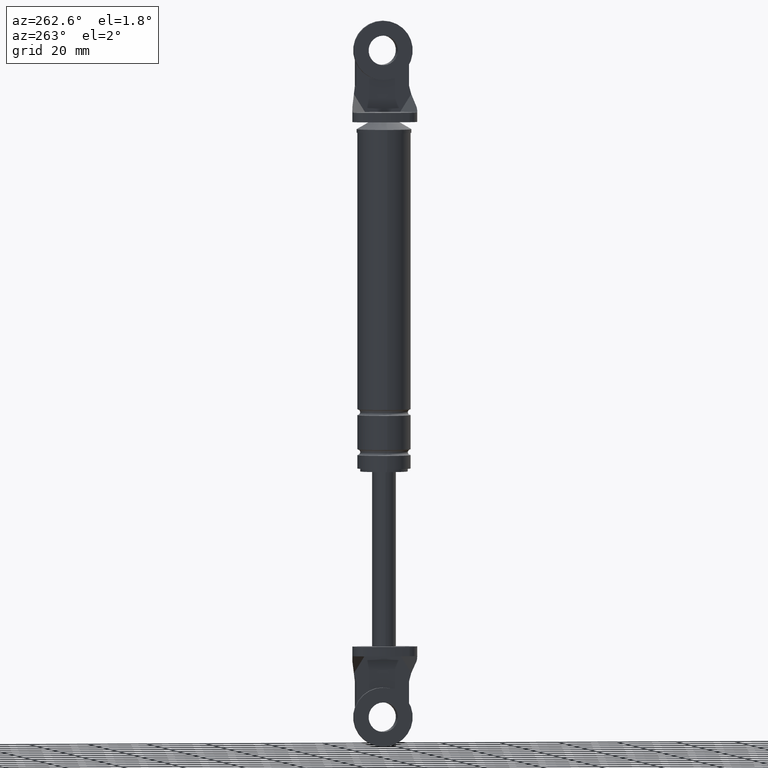
[diagram: clean part render]
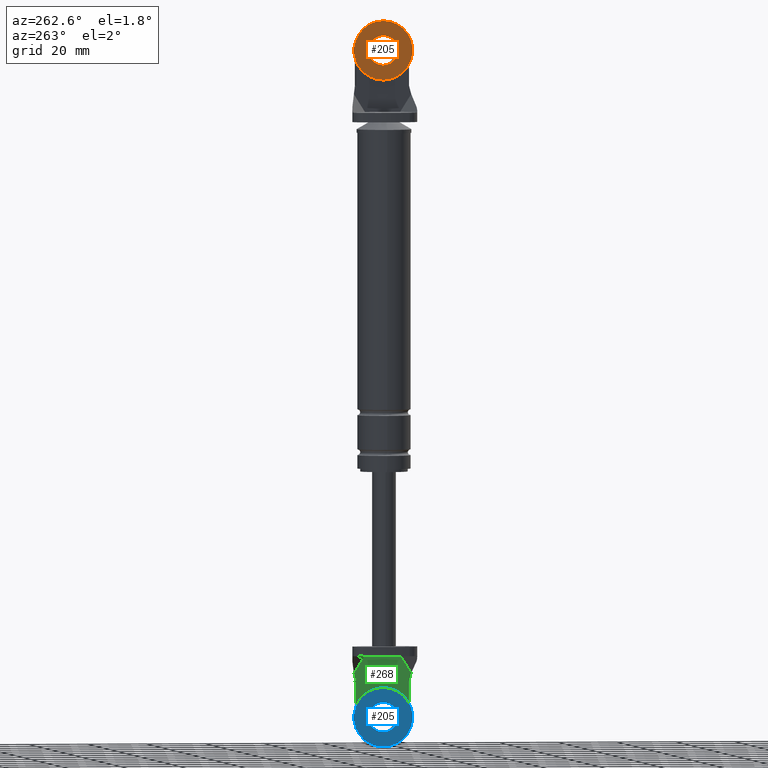
[diagram: same view with three faces highlighted in distinct colors, each labeled with its STEP entity id]
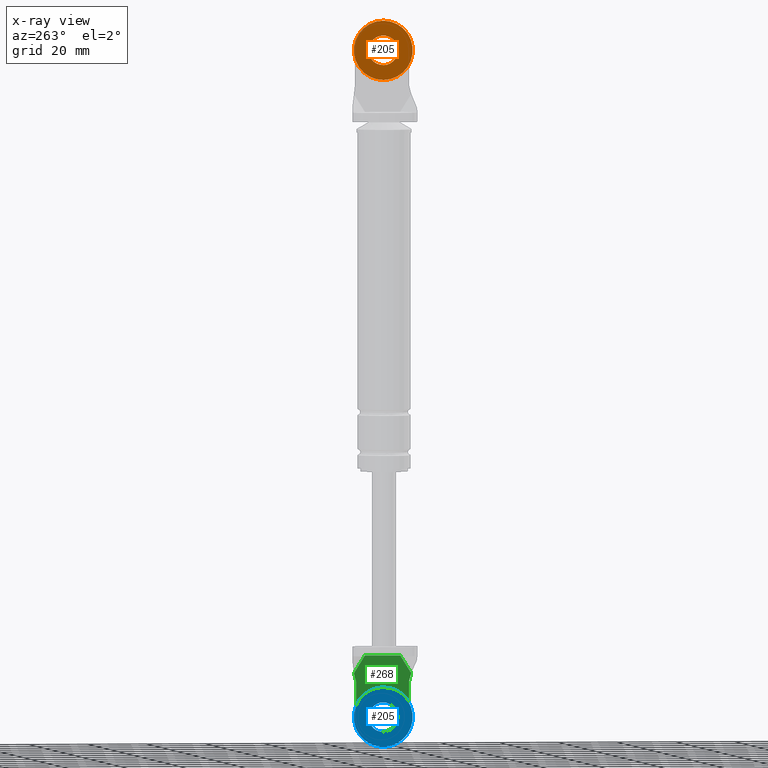
[diagram: x-ray of the same camera — body ghosted, the three highlighted faces saturated]
A machine part, auxiliary view with three faces highlighted in distinct colors.
The next image is the same camera in x-ray (body ghosted, the three faces saturated) — at least one of them is partly hidden behind the body in this view.
Their STEP definitions:

[orange] entity #205 — the highlighted planar face has unit normal (1, 0, 0).
#205=ADVANCED_FACE('',(#298,#299),#297,.F.);
#297=PLANE('',#1125);
#298=FACE_OUTER_BOUND('',#1126,.T.);
#299=FACE_BOUND('',#1127,.T.);
#1122=CARTESIAN_POINT('',(-6.90000460000E+001,2.07846096908E+001,2.76000000000E+002));
#1123=DIRECTION('',(1.00000000000E+000,0.00000000000E+000,0.00000000000E+000));
#1124=DIRECTION('',(0.00000000000E+000,-1.00000000000E+000,0.00000000000E+000));
#1125=AXIS2_PLACEMENT_3D('',#1122,#1123,#1124);
#1126=EDGE_LOOP('',(#1766,#1767));
#1127=EDGE_LOOP('',(#1768,#1769));
#1766=ORIENTED_EDGE('',*,*,#2162,.T.);
#1767=ORIENTED_EDGE('',*,*,#2163,.T.);
#1768=ORIENTED_EDGE('',*,*,#2164,.F.);
#1769=ORIENTED_EDGE('',*,*,#2165,.F.);
#2162=EDGE_CURVE('',#2384,#2385,#2386,.T.);
#2163=EDGE_CURVE('',#2385,#2384,#2392,.T.);
#2164=EDGE_CURVE('',#2398,#2399,#2400,.T.);
#2165=EDGE_CURVE('',#2399,#2398,#2406,.T.);
#2384=VERTEX_POINT('',#3690);
#2385=VERTEX_POINT('',#3691);
#2386=CIRCLE('',#3695,1.00000000000E+001);
#2392=CIRCLE('',#3699,1.00000000000E+001);
#2398=VERTEX_POINT('',#3700);
#2399=VERTEX_POINT('',#3701);
#2400=CIRCLE('',#3705,5.00000000000E+000);
#2406=CIRCLE('',#3709,5.00000000000E+000);
#3690=CARTESIAN_POINT('',(-6.90000460000E+001,5.68434188608E-014,2.43000000000E+002));
#3691=CARTESIAN_POINT('',(-6.90000460000E+001,5.80276567537E-014,2.63000000000E+002));
#3692=CARTESIAN_POINT('',(-6.90000460000E+001,5.68434188608E-014,2.53000000000E+002));
#3693=DIRECTION('',(-1.00000000000E+000,0.00000000000E+000,-0.00000000000E+000));
#3694=DIRECTION('',(0.00000000000E+000,-1.22460635382E-016,-1.00000000000E+000));
#3695=AXIS2_PLACEMENT_3D('',#3692,#3693,#3694);
#3696=CARTESIAN_POINT('',(-6.90000460000E+001,5.68434188608E-014,2.53000000000E+002));
#3697=DIRECTION('',(-1.00000000000E+000,0.00000000000E+000,-0.00000000000E+000));
#3698=DIRECTION('',(0.00000000000E+000,-1.22460635382E-016,-1.00000000000E+000));
#3699=AXIS2_PLACEMENT_3D('',#3696,#3697,#3698);
#3700=CARTESIAN_POINT('',(-6.90000460000E+001,5.74355378073E-014,2.58000000000E+002));
#3701=CARTESIAN_POINT('',(-6.90000460000E+001,5.68434188608E-014,2.48000000000E+002));
#3702=CARTESIAN_POINT('',(-6.90000460000E+001,5.68434188608E-014,2.53000000000E+002));
#3703=DIRECTION('',(-1.00000000000E+000,0.00000000000E+000,-0.00000000000E+000));
#3704=DIRECTION('',(0.00000000000E+000,-1.22460635382E-016,-1.00000000000E+000));
#3705=AXIS2_PLACEMENT_3D('',#3702,#3703,#3704);
#3706=CARTESIAN_POINT('',(-6.90000460000E+001,5.68434188608E-014,2.53000000000E+002));
#3707=DIRECTION('',(-1.00000000000E+000,0.00000000000E+000,-0.00000000000E+000));
#3708=DIRECTION('',(0.00000000000E+000,-1.22460635382E-016,-1.00000000000E+000));
#3709=AXIS2_PLACEMENT_3D('',#3706,#3707,#3708);

[blue] entity #205 — the highlighted planar face has unit normal (1, 0, 0).
#205=ADVANCED_FACE('',(#298,#299),#297,.F.);
#297=PLANE('',#1125);
#298=FACE_OUTER_BOUND('',#1126,.T.);
#299=FACE_BOUND('',#1127,.T.);
#1122=CARTESIAN_POINT('',(-6.90000460000E+001,2.07846096908E+001,2.76000000000E+002));
#1123=DIRECTION('',(1.00000000000E+000,0.00000000000E+000,0.00000000000E+000));
#1124=DIRECTION('',(0.00000000000E+000,-1.00000000000E+000,0.00000000000E+000));
#1125=AXIS2_PLACEMENT_3D('',#1122,#1123,#1124);
#1126=EDGE_LOOP('',(#1766,#1767));
#1127=EDGE_LOOP('',(#1768,#1769));
#1766=ORIENTED_EDGE('',*,*,#2162,.T.);
#1767=ORIENTED_EDGE('',*,*,#2163,.T.);
#1768=ORIENTED_EDGE('',*,*,#2164,.F.);
#1769=ORIENTED_EDGE('',*,*,#2165,.F.);
#2162=EDGE_CURVE('',#2384,#2385,#2386,.T.);
#2163=EDGE_CURVE('',#2385,#2384,#2392,.T.);
#2164=EDGE_CURVE('',#2398,#2399,#2400,.T.);
#2165=EDGE_CURVE('',#2399,#2398,#2406,.T.);
#2384=VERTEX_POINT('',#3690);
#2385=VERTEX_POINT('',#3691);
#2386=CIRCLE('',#3695,1.00000000000E+001);
#2392=CIRCLE('',#3699,1.00000000000E+001);
#2398=VERTEX_POINT('',#3700);
#2399=VERTEX_POINT('',#3701);
#2400=CIRCLE('',#3705,5.00000000000E+000);
#2406=CIRCLE('',#3709,5.00000000000E+000);
#3690=CARTESIAN_POINT('',(-6.90000460000E+001,5.68434188608E-014,2.43000000000E+002));
#3691=CARTESIAN_POINT('',(-6.90000460000E+001,5.80276567537E-014,2.63000000000E+002));
#3692=CARTESIAN_POINT('',(-6.90000460000E+001,5.68434188608E-014,2.53000000000E+002));
#3693=DIRECTION('',(-1.00000000000E+000,0.00000000000E+000,-0.00000000000E+000));
#3694=DIRECTION('',(0.00000000000E+000,-1.22460635382E-016,-1.00000000000E+000));
#3695=AXIS2_PLACEMENT_3D('',#3692,#3693,#3694);
#3696=CARTESIAN_POINT('',(-6.90000460000E+001,5.68434188608E-014,2.53000000000E+002));
#3697=DIRECTION('',(-1.00000000000E+000,0.00000000000E+000,-0.00000000000E+000));
#3698=DIRECTION('',(0.00000000000E+000,-1.22460635382E-016,-1.00000000000E+000));
#3699=AXIS2_PLACEMENT_3D('',#3696,#3697,#3698);
#3700=CARTESIAN_POINT('',(-6.90000460000E+001,5.74355378073E-014,2.58000000000E+002));
#3701=CARTESIAN_POINT('',(-6.90000460000E+001,5.68434188608E-014,2.48000000000E+002));
#3702=CARTESIAN_POINT('',(-6.90000460000E+001,5.68434188608E-014,2.53000000000E+002));
#3703=DIRECTION('',(-1.00000000000E+000,0.00000000000E+000,-0.00000000000E+000));
#3704=DIRECTION('',(0.00000000000E+000,-1.22460635382E-016,-1.00000000000E+000));
#3705=AXIS2_PLACEMENT_3D('',#3702,#3703,#3704);
#3706=CARTESIAN_POINT('',(-6.90000460000E+001,5.68434188608E-014,2.53000000000E+002));
#3707=DIRECTION('',(-1.00000000000E+000,0.00000000000E+000,-0.00000000000E+000));
#3708=DIRECTION('',(0.00000000000E+000,-1.22460635382E-016,-1.00000000000E+000));
#3709=AXIS2_PLACEMENT_3D('',#3706,#3707,#3708);

[green] entity #268 — the highlighted planar face has unit normal (1, 0, 0).
#268=ADVANCED_FACE('',(#935,#936),#934,.F.);
#934=PLANE('',#1623);
#935=FACE_OUTER_BOUND('',#1624,.T.);
#936=FACE_BOUND('',#1625,.T.);
#1620=CARTESIAN_POINT('',(3.80000300000E+000,-1.16951792999E+001,-1.23980015732E+002));
#1621=DIRECTION('',(1.00000000000E+000,0.00000000000E+000,0.00000000000E+000));
#1622=DIRECTION('',(0.00000000000E+000,1.00000000000E+000,0.00000000000E+000));
#1623=AXIS2_PLACEMENT_3D('',#1620,#1621,#1622);
#1624=EDGE_LOOP('',(#2057,#2058,#2059,#2060,#2061,#2062,#2063,#2064,#2065,#2066));
#1625=EDGE_LOOP('',(#2067,#2068));
#2057=ORIENTED_EDGE('',*,*,#2313,.T.);
#2058=ORIENTED_EDGE('',*,*,#2321,.F.);
#2059=ORIENTED_EDGE('',*,*,#2322,.F.);
#2060=ORIENTED_EDGE('',*,*,#2296,.T.);
#2061=ORIENTED_EDGE('',*,*,#2299,.T.);
#2062=ORIENTED_EDGE('',*,*,#2292,.T.);
#2063=ORIENTED_EDGE('',*,*,#2323,.F.);
#2064=ORIENTED_EDGE('',*,*,#2324,.F.);
#2065=ORIENTED_EDGE('',*,*,#2319,.T.);
#2066=ORIENTED_EDGE('',*,*,#2316,.F.);
#2067=ORIENTED_EDGE('',*,*,#2325,.T.);
#2068=ORIENTED_EDGE('',*,*,#2326,.T.);
#2292=EDGE_CURVE('',#3248,#3241,#3249,.T.);
#2296=EDGE_CURVE('',#3276,#3269,#3277,.T.);
#2299=EDGE_CURVE('',#3269,#3248,#3296,.T.);
#2313=EDGE_CURVE('',#3392,#3385,#3393,.T.);
#2316=EDGE_CURVE('',#3392,#3412,#3413,.T.);
#2319=EDGE_CURVE('',#3432,#3412,#3433,.T.);
#2321=EDGE_CURVE('',#3445,#3385,#3446,.T.);
#2322=EDGE_CURVE('',#3276,#3445,#3452,.T.);
#2323=EDGE_CURVE('',#3458,#3241,#3459,.T.);
#2324=EDGE_CURVE('',#3432,#3458,#3465,.T.);
#2325=EDGE_CURVE('',#3471,#3472,#3473,.T.);
#2326=EDGE_CURVE('',#3472,#3471,#3479,.T.);
#3241=VERTEX_POINT('',#4213);
#3248=VERTEX_POINT('',#4217);
#3249=LINE('',#4218,#4219);
#3269=VERTEX_POINT('',#4229);
#3276=VERTEX_POINT('',#4233);
#3277=LINE('',#4234,#4235);
#3296=LINE('',#4245,#4246);
#3385=VERTEX_POINT('',#4297);
#3392=VERTEX_POINT('',#4301);
#3393=LINE('',#4302,#4303);
#3412=VERTEX_POINT('',#4313);
#3413=CIRCLE('',#4317,9.00000000000E+000);
#3432=VERTEX_POINT('',#4325);
#3433=LINE('',#4326,#4327);
#3445=VERTEX_POINT('',#4332);
#3446=LINE('',#4333,#4334);
#3452=LINE('',#4336,#4337);
#3458=VERTEX_POINT('',#4339);
#3459=LINE('',#4340,#4341);
#3465=LINE('',#4343,#4344);
#3471=VERTEX_POINT('',#4346);
#3472=VERTEX_POINT('',#4347);
#3473=CIRCLE('',#4351,5.00000000000E+000);
#3479=CIRCLE('',#4355,5.00000000000E+000);
#4213=CARTESIAN_POINT('',(3.80000300000E+000,9.74598274994E+000,-9.71935906119E+001));
#4217=CARTESIAN_POINT('',(3.80000300000E+000,6.00000000000E+000,-9.12000120000E+001));
#4218=CARTESIAN_POINT('',(3.80000300000E+000,6.00000000000E+000,-9.12000120000E+001));
#4219=VECTOR('',#4220,7.06791138451E+000);
#4220=DIRECTION('',(0.00000000000E+000,5.29998544994E-001,-8.47998550886E-001));
#4229=CARTESIAN_POINT('',(3.80000300000E+000,-6.00000000000E+000,-9.12000120000E+001));
#4233=CARTESIAN_POINT('',(3.80000300000E+000,-9.74598274994E+000,-9.71935906119E+001));
#4234=CARTESIAN_POINT('',(3.80000300000E+000,-9.74598274994E+000,-9.71935906119E+001));
#4235=VECTOR('',#4236,7.06791138451E+000);
#4236=DIRECTION('',(0.00000000000E+000,5.29998544994E-001,8.47998550886E-001));
#4245=CARTESIAN_POINT('',(3.80000300000E+000,-6.00000000000E+000,-9.12000120000E+001));
#4246=VECTOR('',#4247,1.20000000000E+001);
#4247=DIRECTION('',(0.00000000000E+000,1.00000000000E+000,0.00000000000E+000));
#4297=CARTESIAN_POINT('',(3.80000300000E+000,-9.00000000000E+000,-1.00000015000E+002));
#4301=CARTESIAN_POINT('',(3.80000300000E+000,-9.00000000000E+000,-1.12000014215E+002));
#4302=CARTESIAN_POINT('',(3.80000300000E+000,-9.00000000000E+000,-1.12000014215E+002));
#4303=VECTOR('',#4304,1.19999992146E+001);
#4304=DIRECTION('',(0.00000000000E+000,0.00000000000E+000,1.00000000000E+000));
#4313=CARTESIAN_POINT('',(3.80000300000E+000,9.00000000000E+000,-1.12000015000E+002));
#4314=CARTESIAN_POINT('',(3.80000300000E+000,0.00000000000E+000,-1.12000015000E+002));
#4315=DIRECTION('',(1.00000000000E+000,0.00000000000E+000,0.00000000000E+000));
#4316=DIRECTION('',(-0.00000000000E+000,-0.00000000000E+000,1.00000000000E+000));
#4317=AXIS2_PLACEMENT_3D('',#4314,#4315,#4316);
#4325=CARTESIAN_POINT('',(3.80000300000E+000,9.00000000000E+000,-1.00000015000E+002));
#4326=CARTESIAN_POINT('',(3.80000300000E+000,9.00000000000E+000,-1.00000015000E+002));
#4327=VECTOR('',#4328,1.20000000000E+001);
#4328=DIRECTION('',(0.00000000000E+000,0.00000000000E+000,-1.00000000000E+000));
#4332=CARTESIAN_POINT('',(3.80000300000E+000,-9.74598274994E+000,-9.72159694757E+001));
#4333=CARTESIAN_POINT('',(3.80000300000E+000,-9.74598274994E+000,-9.72159694757E+001));
#4334=VECTOR('',#4335,2.88225601652E+000);
#4335=DIRECTION('',(0.00000000000E+000,2.58819045103E-001,-9.65925826289E-001));
#4336=CARTESIAN_POINT('',(3.80000300000E+000,-9.74598274994E+000,-9.71935906119E+001));
#4337=VECTOR('',#4338,2.23788638131E-002);
#4338=DIRECTION('',(0.00000000000E+000,0.00000000000E+000,-1.00000000000E+000));
#4339=CARTESIAN_POINT('',(3.80000300000E+000,9.74598274994E+000,-9.72159694757E+001));
#4340=CARTESIAN_POINT('',(3.80000300000E+000,9.74598274994E+000,-9.72159694757E+001));
#4341=VECTOR('',#4342,2.23788638136E-002);
#4342=DIRECTION('',(0.00000000000E+000,0.00000000000E+000,1.00000000000E+000));
#4343=CARTESIAN_POINT('',(3.80000300000E+000,9.00000000000E+000,-1.00000015000E+002));
#4344=VECTOR('',#4345,2.88225601652E+000);
#4345=DIRECTION('',(0.00000000000E+000,2.58819045103E-001,9.65925826289E-001));
#4346=CARTESIAN_POINT('',(3.80000300000E+000,0.00000000000E+000,-1.17000015000E+002));
#4347=CARTESIAN_POINT('',(3.80000300000E+000,2.96059473233E-016,-1.07000015000E+002));
#4348=CARTESIAN_POINT('',(3.80000300000E+000,0.00000000000E+000,-1.12000015000E+002));
#4349=DIRECTION('',(1.00000000000E+000,0.00000000000E+000,0.00000000000E+000));
#4350=DIRECTION('',(0.00000000000E+000,-1.22460635382E-016,-1.00000000000E+000));
#4351=AXIS2_PLACEMENT_3D('',#4348,#4349,#4350);
#4352=CARTESIAN_POINT('',(3.80000300000E+000,0.00000000000E+000,-1.12000015000E+002));
#4353=DIRECTION('',(1.00000000000E+000,0.00000000000E+000,0.00000000000E+000));
#4354=DIRECTION('',(0.00000000000E+000,-1.22460635382E-016,-1.00000000000E+000));
#4355=AXIS2_PLACEMENT_3D('',#4352,#4353,#4354);